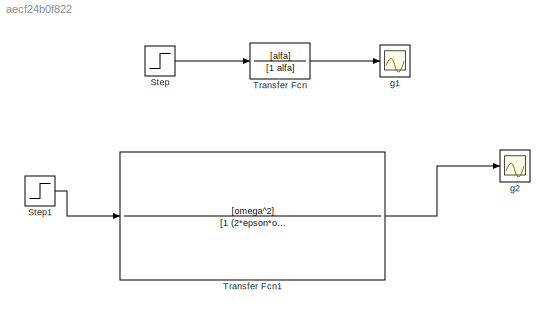
MODEL slx_aecf24b0f822
KIND model
BLOCK [Step] Step
  SampleTime = 0
BLOCK [Step] Step1
  SampleTime = 0
BLOCK [TransferFcn] Transfer Fcn
  Denominator = [1 alfa]
  Numerator = [alfa]
BLOCK [TransferFcn] Transfer Fcn1
  Denominator = [1 (2*epson*omega) omega^2]
  Numerator = [omega^2]
BLOCK [Scope] g1
  DataFormat = StructureWithTime
  Floating = off
  NumInputPorts = 1
  Ports = [1]
  SampleTime = 0
  ShowLegends = off
BLOCK [Scope] g2
  DataFormat = StructureWithTime
  Floating = off
  NumInputPorts = 1
  Ports = [1]
  SampleTime = 0
  SaveName = ScopeData1
  ShowLegends = off
LINE Step1:1 -> Transfer Fcn1:1
LINE Step:1 -> Transfer Fcn:1
LINE Transfer Fcn1:1 -> g2:1
LINE Transfer Fcn:1 -> g1:1
